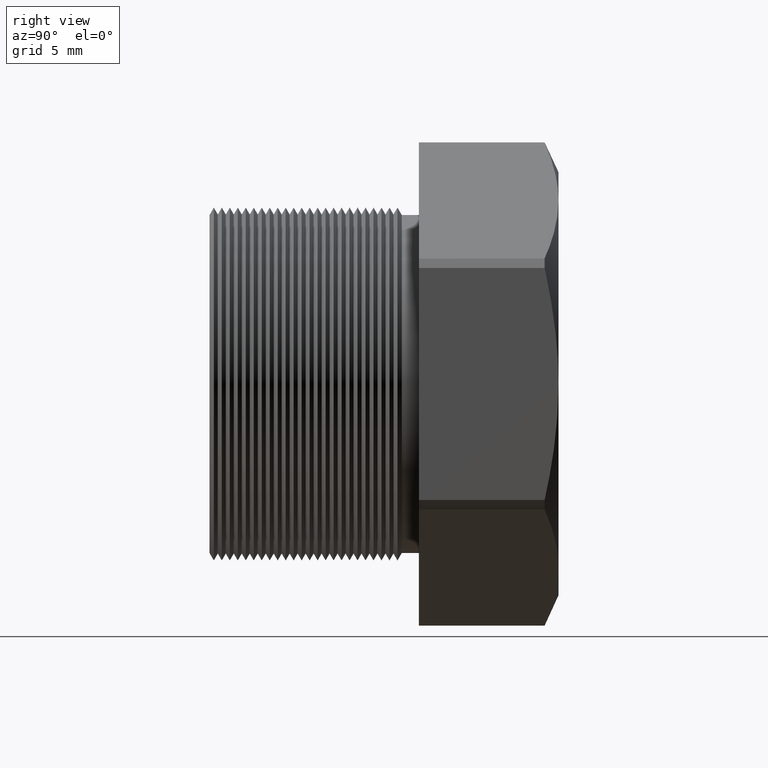
[diagram: clean part render]
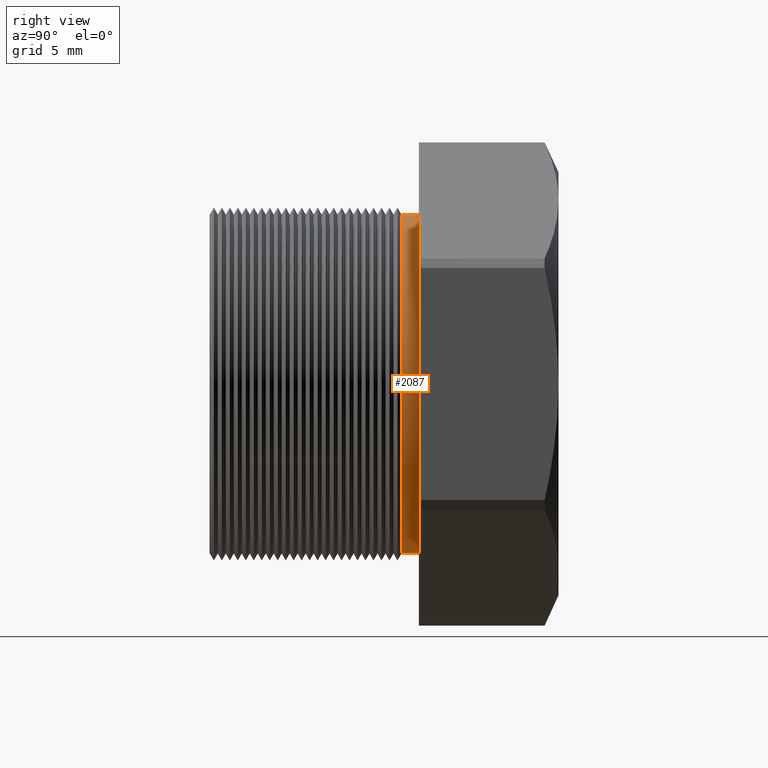
[diagram: same view with one face highlighted and labeled with its STEP entity id]
A machine part, right view. The second image highlights one B-rep face of the part: STEP entity #2087.
In plain terms, the highlighted cylindrical surface (partial cylindrical patch) has radius 8.001 mm, axis along (-0, -1, -0).
Its self-contained STEP definition (entity closure, byte-faithful):
#1193 = DIRECTION ( 'NONE',  ( 0.0000000000000000000, 0.0000000000000000000, -1.000000000000000000 ) ) ;
#1194 = DIRECTION ( 'NONE',  ( 0.0000000000000000000, -1.000000000000000000, 0.0000000000000000000 ) ) ;
#1258 = ORIENTED_EDGE ( 'NONE', *, *, #2067, .F. ) ;
#1259 = ORIENTED_EDGE ( 'NONE', *, *, #1260, .F. ) ;
#1260 = EDGE_CURVE ( 'NONE', #2091, #2068, #4496, .T. ) ;
#2067 = EDGE_CURVE ( 'NONE', #2068, #2069, #5628, .T. ) ;
#2068 = VERTEX_POINT ( 'NONE', #6207 ) ;
#2069 = VERTEX_POINT ( 'NONE', #6206 ) ;
#2087 = ADVANCED_FACE ( 'NONE', ( #6231 ), #6229, .T. ) ;
#2088 = EDGE_LOOP ( 'NONE', ( #2089, #2093, #1258, #1259 ) ) ;
#2089 = ORIENTED_EDGE ( 'NONE', *, *, #2090, .T. ) ;
#2090 = EDGE_CURVE ( 'NONE', #2091, #2092, #6230, .T. ) ;
#2091 = VERTEX_POINT ( 'NONE', #6220 ) ;
#2092 = VERTEX_POINT ( 'NONE', #6219 ) ;
#2093 = ORIENTED_EDGE ( 'NONE', *, *, #2094, .T. ) ;
#2094 = EDGE_CURVE ( 'NONE', #2092, #2069, #6218, .T. ) ;
#4493 = DIRECTION ( 'NONE',  ( -0.0000000000000000000, -1.000000000000000000, -0.0000000000000000000 ) ) ;
#4494 = VECTOR ( 'NONE', #4493, 39.37007874015748100 ) ;
#4495 = CARTESIAN_POINT ( 'NONE',  ( 0.0000000000000000000, 0.0000000000000000000, -0.3150000000000000000 ) ) ;
#4496 = LINE ( 'NONE', #4495, #4494 ) ;
#5627 = AXIS2_PLACEMENT_3D ( 'NONE', #5888, #1194, #1193 ) ;
#5628 = CIRCLE ( 'NONE', #5627, 0.3150000000000000000 ) ;
#5888 = CARTESIAN_POINT ( 'NONE',  ( 0.0000000000000000000, 0.1155072448100089900, 0.0000000000000000000 ) ) ;
#6206 = CARTESIAN_POINT ( 'NONE',  ( 3.857637417314162700E-017, 0.1155072448100089900, 0.3150000000000000000 ) ) ;
#6207 = CARTESIAN_POINT ( 'NONE',  ( 0.0000000000000000000, 0.1155072448100089900, -0.3150000000000000000 ) ) ;
#6215 = DIRECTION ( 'NONE',  ( -0.0000000000000000000, -1.000000000000000000, -0.0000000000000000000 ) ) ;
#6216 = VECTOR ( 'NONE', #6215, 39.37007874015748100 ) ;
#6217 = CARTESIAN_POINT ( 'NONE',  ( 3.857637417314162700E-017, 0.0000000000000000000, 0.3150000000000000000 ) ) ;
#6218 = LINE ( 'NONE', #6217, #6216 ) ;
#6219 = CARTESIAN_POINT ( 'NONE',  ( 3.857637417314162700E-017, 0.1475548905829479600, 0.3150000000000000000 ) ) ;
#6220 = CARTESIAN_POINT ( 'NONE',  ( 0.0000000000000000000, 0.1475548905829479600, -0.3150000000000000000 ) ) ;
#6221 = DIRECTION ( 'NONE',  ( 0.0000000000000000000, 0.0000000000000000000, -1.000000000000000000 ) ) ;
#6222 = DIRECTION ( 'NONE',  ( -0.0000000000000000000, -1.000000000000000000, -0.0000000000000000000 ) ) ;
#6223 = CARTESIAN_POINT ( 'NONE',  ( 0.0000000000000000000, 0.1475548905829479600, 0.0000000000000000000 ) ) ;
#6224 = AXIS2_PLACEMENT_3D ( 'NONE', #6223, #6222, #6221 ) ;
#6225 = DIRECTION ( 'NONE',  ( 0.0000000000000000000, 0.0000000000000000000, -1.000000000000000000 ) ) ;
#6226 = DIRECTION ( 'NONE',  ( -0.0000000000000000000, -1.000000000000000000, -0.0000000000000000000 ) ) ;
#6227 = CARTESIAN_POINT ( 'NONE',  ( 0.0000000000000000000, 0.0000000000000000000, 0.0000000000000000000 ) ) ;
#6228 = AXIS2_PLACEMENT_3D ( 'NONE', #6227, #6226, #6225 ) ;
#6229 = CYLINDRICAL_SURFACE ( 'NONE', #6228, 0.3150000000000000000 ) ;
#6230 = CIRCLE ( 'NONE', #6224, 0.3150000000000000000 ) ;
#6231 = FACE_OUTER_BOUND ( 'NONE', #2088, .T. ) ;